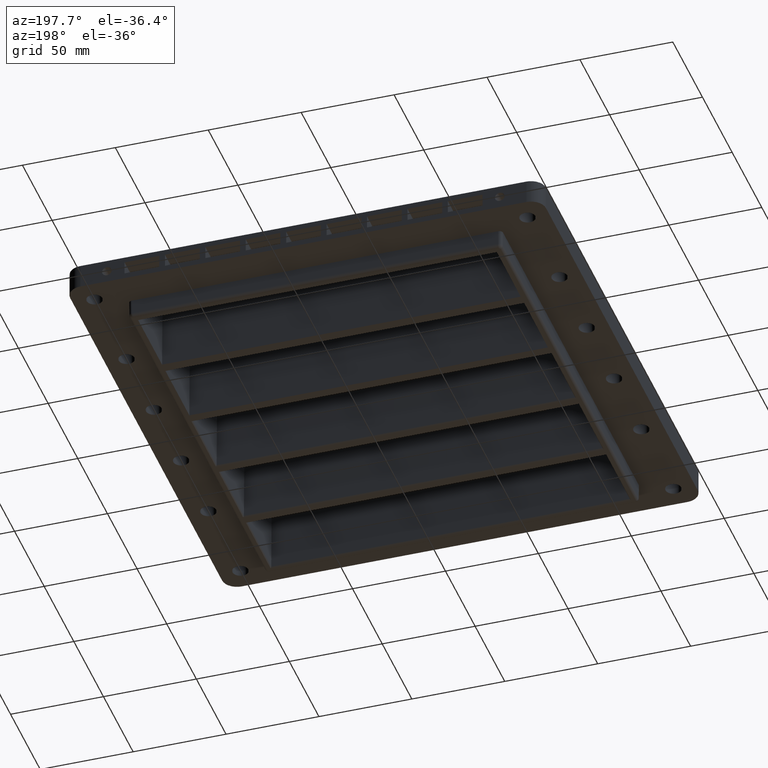
[diagram: clean part render]
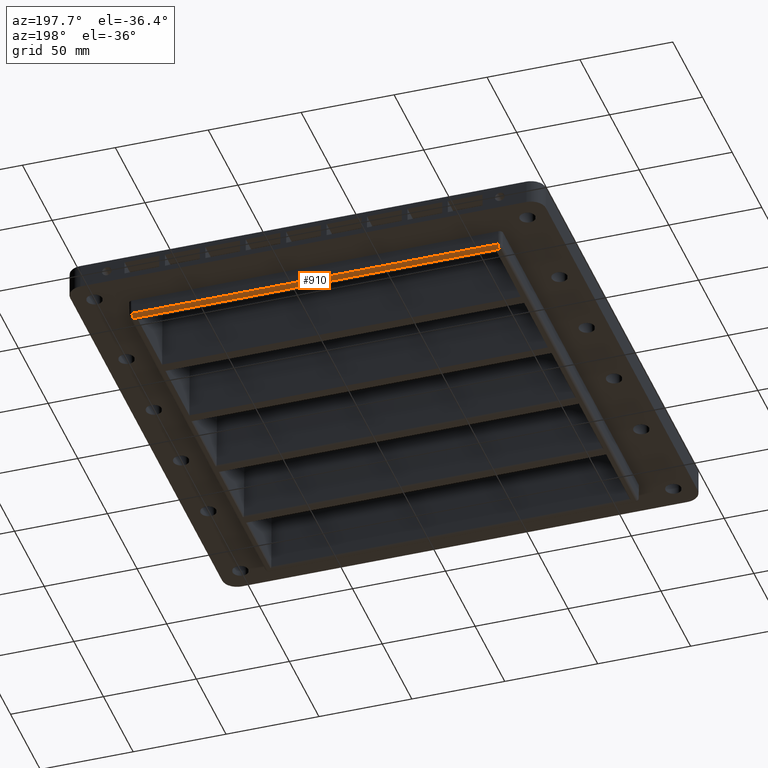
[diagram: same view with one face highlighted and labeled with its STEP entity id]
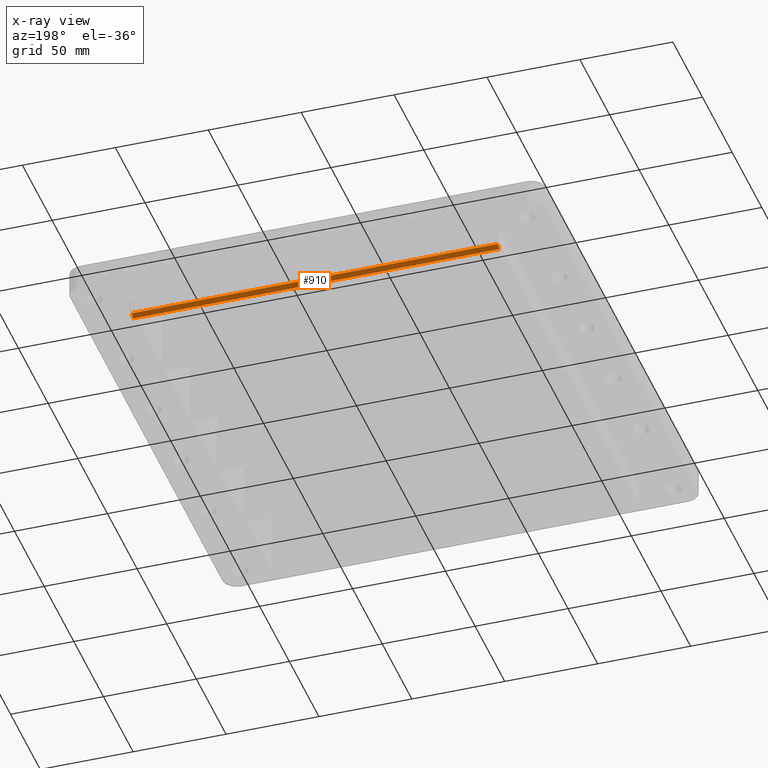
[diagram: x-ray of the same camera — body ghosted, the highlighted face saturated]
A machine part, auxiliary view. The second image highlights one B-rep face of the part: STEP entity #910.
The next image is the same camera in x-ray: the body ghosted, the highlighted face saturated — about 0% of this face is hidden behind the body in this view.
In plain terms, the highlighted cylindrical surface (edge-blend (fillet) strip) has radius 2 mm, axis along (-1, -0, 0).
Its self-contained STEP definition (entity closure, byte-faithful):
#197=CYLINDRICAL_SURFACE('',#8197,2.);
#550=CIRCLE('',#8158,2.);
#559=CIRCLE('',#8174,2.);
#910=ADVANCED_FACE('',(#1602),#197,.T.);
#1602=FACE_OUTER_BOUND('',#2063,.T.);
#2063=EDGE_LOOP('',(#3650,#3651,#3652,#3653));
#3650=ORIENTED_EDGE('',*,*,#5722,.T.);
#3651=ORIENTED_EDGE('',*,*,#5735,.T.);
#3652=ORIENTED_EDGE('',*,*,#5745,.T.);
#3653=ORIENTED_EDGE('',*,*,#5772,.T.);
#4802=VERTEX_POINT('',#11890);
#4803=VERTEX_POINT('',#11891);
#4813=VERTEX_POINT('',#11918);
#4819=VERTEX_POINT('',#11942);
#5722=EDGE_CURVE('',#4802,#4803,#550,.T.);
#5735=EDGE_CURVE('',#4803,#4813,#6649,.T.);
#5745=EDGE_CURVE('',#4813,#4819,#559,.T.);
#5772=EDGE_CURVE('',#4819,#4802,#6670,.T.);
#6649=LINE('',#11917,#7495);
#6670=LINE('',#12001,#7516);
#7495=VECTOR('',#9747,1.);
#7516=VECTOR('',#9824,1.);
#8158=AXIS2_PLACEMENT_3D('',#11889,#9719,#9720);
#8174=AXIS2_PLACEMENT_3D('',#11943,#9763,#9764);
#8197=AXIS2_PLACEMENT_3D('',#12002,#9825,#9826);
#9719=DIRECTION('',(1.,1.379159E-16,0.));
#9720=DIRECTION('',(0.,-1.,-8.67361737988403E-16));
#9747=DIRECTION('',(1.,1.379159E-16,0.));
#9763=DIRECTION('',(-1.,-1.379159E-16,0.));
#9764=DIRECTION('',(0.,-1.,0.));
#9824=DIRECTION('',(-1.,0.,0.));
#9825=DIRECTION('',(-1.,-1.379159E-16,0.));
#9826=DIRECTION('',(0.,1.,0.));
#11889=CARTESIAN_POINT('',(-108.51737757881,-0.732622421189932,2.));
#11890=CARTESIAN_POINT('',(-108.51737757881,-0.732622421189932,0.));
#11891=CARTESIAN_POINT('',(-108.51737757881,1.26730142493842,1.98254692900325));
#11917=CARTESIAN_POINT('',(-70.25,1.26730142493842,1.98254692900325));
#11918=CARTESIAN_POINT('',(88.5173775788101,1.26730142493844,1.98254692900224));
#11942=CARTESIAN_POINT('',(88.5173775788101,-0.732622421189925,-1.10046520507279E-13));
#11943=CARTESIAN_POINT('',(88.5173775788101,-0.732622421189905,2.));
#12001=CARTESIAN_POINT('',(-30.,-0.732622421189925,0.));
#12002=CARTESIAN_POINT('',(-70.25,-0.732622421189925,2.));